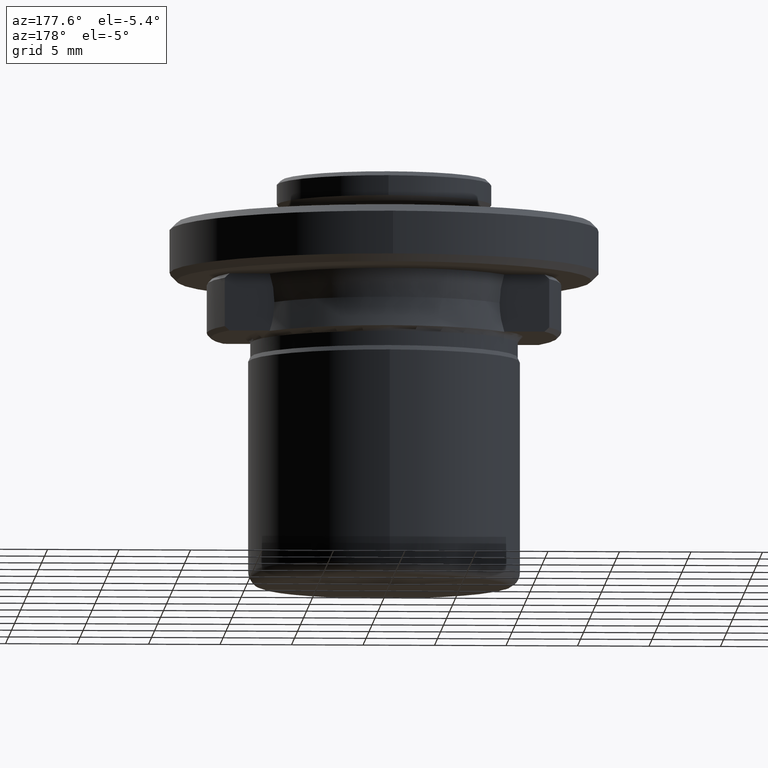
[diagram: clean part render]
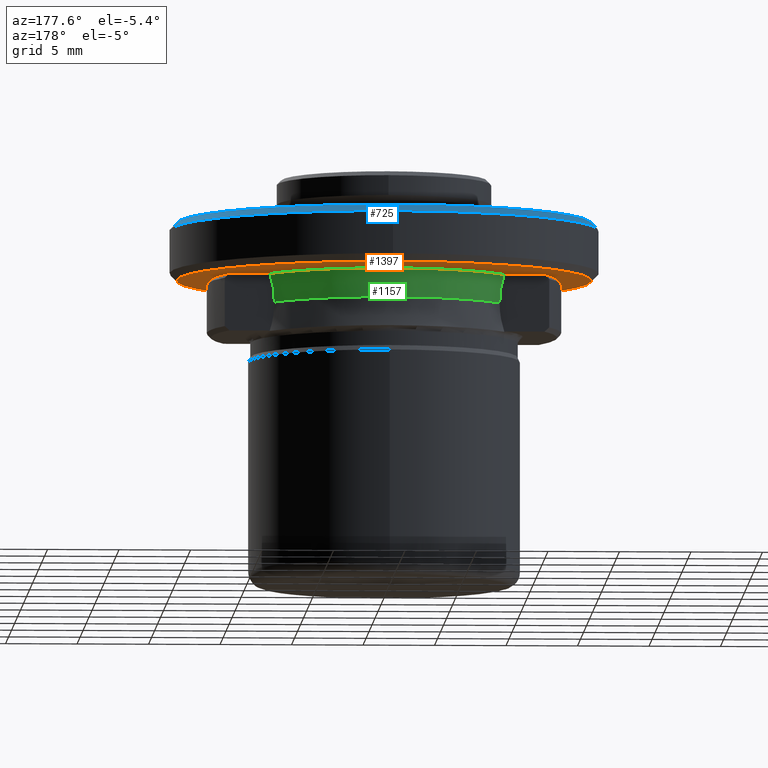
[diagram: same view with three faces highlighted in distinct colors, each labeled with its STEP entity id]
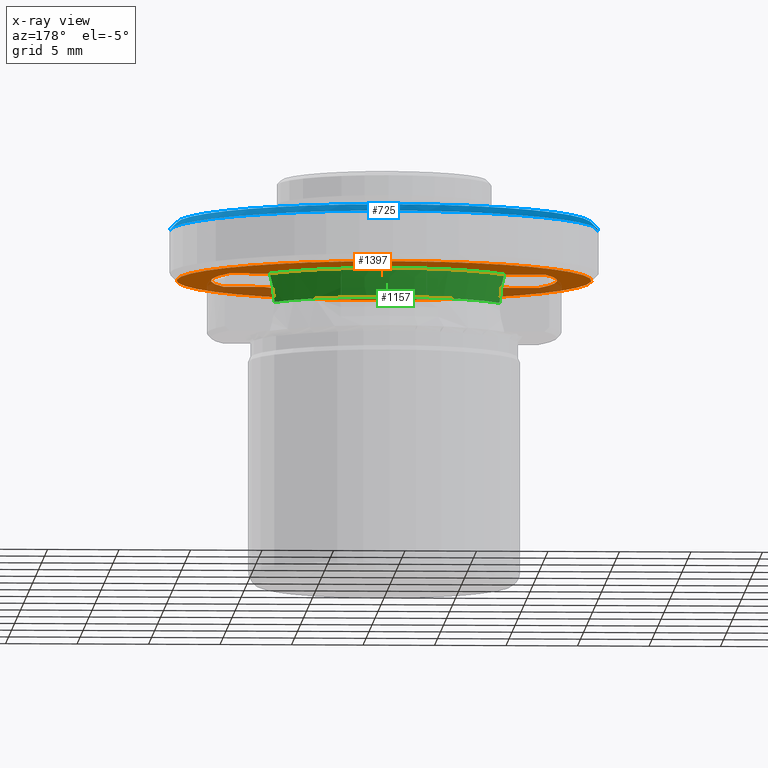
[diagram: x-ray of the same camera — body ghosted, the three highlighted faces saturated]
A machine part, auxiliary view with three faces highlighted in distinct colors.
The next image is the same camera in x-ray (body ghosted, the three faces saturated) — at least one of them is partly hidden behind the body in this view.
Their STEP definitions:

[orange] entity #1397 — the highlighted planar face has unit normal (0, 0, 1).
#24 = CARTESIAN_POINT ( 'NONE',  ( 14.50000000000003600, 0.0000000000000000000, 8.750000000000035500 ) ) ;
#25 = AXIS2_PLACEMENT_3D ( 'NONE', #1444, #401, #1613 ) ;
#59 = CIRCLE ( 'NONE', #2101, 12.10000000000000100 ) ;
#86 = CARTESIAN_POINT ( 'NONE',  ( -8.196975813224247200, -5.000000000059219300, 8.750000000000000000 ) ) ;
#90 = ORIENTED_EDGE ( 'NONE', *, *, #1494, .F. ) ;
#141 = FACE_OUTER_BOUND ( 'NONE', #1128, .T. ) ;
#170 = VERTEX_POINT ( 'NONE', #86 ) ;
#203 = CIRCLE ( 'NONE', #1188, 12.10000000000000000 ) ;
#217 = VERTEX_POINT ( 'NONE', #617 ) ;
#222 = ORIENTED_EDGE ( 'NONE', *, *, #942, .F. ) ;
#231 = EDGE_CURVE ( 'NONE', #1811, #1316, #1967, .T. ) ;
#250 = CARTESIAN_POINT ( 'NONE',  ( 11.01862060256122100, 5.000000003314000600, 8.749999999325346800 ) ) ;
#257 = CARTESIAN_POINT ( 'NONE',  ( 8.196975813404300500, -5.000000000000000000, 8.750000000444099900 ) ) ;
#272 = CARTESIAN_POINT ( 'NONE',  ( 9.597103929000001100, -5.000000000000000000, 8.750000000000000000 ) ) ;
#274 = EDGE_CURVE ( 'NONE', #170, #2058, #1125, .T. ) ;
#298 = VECTOR ( 'NONE', #1314, 1000.000000000000000 ) ;
#392 = VERTEX_POINT ( 'NONE', #2104 ) ;
#401 = DIRECTION ( 'NONE',  ( 0.0000000000000000000, -0.0000000000000000000, 1.000000000000000000 ) ) ;
#428 = DIRECTION ( 'NONE',  ( 0.0000000000000000000, 0.0000000000000000000, -1.000000000000000000 ) ) ;
#454 = ORIENTED_EDGE ( 'NONE', *, *, #274, .T. ) ;
#455 = EDGE_CURVE ( 'NONE', #1316, #1811, #2140, .T. ) ;
#465 = ORIENTED_EDGE ( 'NONE', *, *, #910, .F. ) ;
#471 = PLANE ( 'NONE',  #2216 ) ;
#509 = CARTESIAN_POINT ( 'NONE',  ( -8.196975813224247200, -5.000000000059219300, 8.750000000000000000 ) ) ;
#526 = CIRCLE ( 'NONE', #539, 12.10000000000000000 ) ;
#539 = AXIS2_PLACEMENT_3D ( 'NONE', #563, #1772, #755 ) ;
#542 = ORIENTED_EDGE ( 'NONE', *, *, #573, .F. ) ;
#553 = DIRECTION ( 'NONE',  ( 0.0000000000000000000, 0.0000000000000000000, -1.000000000000000000 ) ) ;
#557 = CARTESIAN_POINT ( 'NONE',  ( 8.196975814546172900, 5.000000003314001500, 8.750000000509832200 ) ) ;
#563 = CARTESIAN_POINT ( 'NONE',  ( 0.0000000000000000000, 0.0000000000000000000, 8.750000000000000000 ) ) ;
#573 = EDGE_CURVE ( 'NONE', #1573, #217, #203, .T. ) ;
#617 = CARTESIAN_POINT ( 'NONE',  ( -11.01862060233275300, 5.000000003314000600, 8.749999999533397200 ) ) ;
#619 = LINE ( 'NONE', #1751, #1481 ) ;
#620 = EDGE_CURVE ( 'NONE', #392, #170, #1928, .T. ) ;
#636 = CARTESIAN_POINT ( 'NONE',  ( -14.50000000000003600, 1.806354028742348200E-015, 8.750000000000035500 ) ) ;
#664 = CARTESIAN_POINT ( 'NONE',  ( -14.67399999999999900, -14.67399999999999900, 8.750000000000000000 ) ) ;
#737 = DIRECTION ( 'NONE',  ( 1.000000000000000000, 0.0000000000000000000, 0.0000000000000000000 ) ) ;
#755 = DIRECTION ( 'NONE',  ( -1.000000000000000000, 0.0000000000000000000, 0.0000000000000000000 ) ) ;
#780 = CARTESIAN_POINT ( 'NONE',  ( 4.015183221997171300, -11.85561054524241900, 8.750000000000001800 ) ) ;
#787 = CARTESIAN_POINT ( 'NONE',  ( -8.196975812969103700, 5.000000000442648600, 8.750000000509832200 ) ) ;
#841 = ORIENTED_EDGE ( 'NONE', *, *, #1238, .T. ) ;
#846 = DIRECTION ( 'NONE',  ( 1.000000000000000000, 0.0000000000000000000, 0.0000000000000000000 ) ) ;
#910 = EDGE_CURVE ( 'NONE', #2008, #1169, #1707, .T. ) ;
#942 = EDGE_CURVE ( 'NONE', #392, #1573, #526, .T. ) ;
#948 = ORIENTED_EDGE ( 'NONE', *, *, #1824, .F. ) ;
#960 = CARTESIAN_POINT ( 'NONE',  ( 8.196975814546172900, 5.000000003314001500, 8.750000000509832200 ) ) ;
#977 = CARTESIAN_POINT ( 'NONE',  ( -4.015183221997213000, -11.85561054524239600, 8.750000000000000000 ) ) ;
#980 = DIRECTION ( 'NONE',  ( 1.000000000000000000, -0.0000000000000000000, -0.0000000000000000000 ) ) ;
#1034 = VECTOR ( 'NONE', #980, 1000.000000000000000 ) ;
#1059 = DIRECTION ( 'NONE',  ( 0.0000000000000000000, -0.0000000000000000000, 1.000000000000000000 ) ) ;
#1090 = CARTESIAN_POINT ( 'NONE',  ( 0.0000000000000000000, 0.0000000000000000000, 8.750000000000035500 ) ) ;
#1125 =( BOUNDED_CURVE ( )  B_SPLINE_CURVE ( 3, ( #509, #977, #780, #1363 ),
 .UNSPECIFIED., .F., .F. ) 
 B_SPLINE_CURVE_WITH_KNOTS ( ( 4, 4 ),
 ( 0.0000000000000000000, 0.01955758531398497200 ),
 .UNSPECIFIED. ) 
 CURVE ( )  GEOMETRIC_REPRESENTATION_ITEM ( )  RATIONAL_B_SPLINE_CURVE ( ( 0.9839124906715949200, 0.6695507562529831000, 0.6695507562529824400, 0.9839124906715930300 ) ) 
 REPRESENTATION_ITEM ( '' )  );
#1128 = EDGE_LOOP ( 'NONE', ( #1697, #1995 ) ) ;
#1169 = VERTEX_POINT ( 'NONE', #960 ) ;
#1188 = AXIS2_PLACEMENT_3D ( 'NONE', #1471, #428, #1637 ) ;
#1238 = EDGE_CURVE ( 'NONE', #2058, #2153, #2065, .T. ) ;
#1243 = ORIENTED_EDGE ( 'NONE', *, *, #1842, .F. ) ;
#1254 = VECTOR ( 'NONE', #1706, 1000.000000000000000 ) ;
#1305 = CARTESIAN_POINT ( 'NONE',  ( -9.597103929000001100, -5.000000000000000000, 8.750000000000000000 ) ) ;
#1314 = DIRECTION ( 'NONE',  ( 1.000000000000000000, -0.0000000000000000000, -0.0000000000000000000 ) ) ;
#1316 = VERTEX_POINT ( 'NONE', #636 ) ;
#1352 = CARTESIAN_POINT ( 'NONE',  ( 11.01862060369155700, -4.999999999999999100, 8.749999999665449800 ) ) ;
#1363 = CARTESIAN_POINT ( 'NONE',  ( 8.196975813404298700, -5.000000000000000000, 8.750000000444099900 ) ) ;
#1397 = ADVANCED_FACE ( 'NONE', ( #1509, #141 ), #471, .F. ) ;
#1412 = CARTESIAN_POINT ( 'NONE',  ( -4.015183221453917800, 11.85561054469040200, 8.750000000000001800 ) ) ;
#1444 = CARTESIAN_POINT ( 'NONE',  ( 0.0000000000000000000, 0.0000000000000000000, 8.750000000000035500 ) ) ;
#1450 = CARTESIAN_POINT ( 'NONE',  ( -12.09999999999999800, 0.0000000000000000000, 8.750000000000000000 ) ) ;
#1471 = CARTESIAN_POINT ( 'NONE',  ( 0.0000000000000000000, 0.0000000000000000000, 8.750000000000000000 ) ) ;
#1481 = VECTOR ( 'NONE', #737, 1000.000000000000000 ) ;
#1494 = EDGE_CURVE ( 'NONE', #1169, #2000, #2147, .T. ) ;
#1509 = FACE_BOUND ( 'NONE', #1703, .T. ) ;
#1570 = DIRECTION ( 'NONE',  ( 1.000000000000000000, 0.0000000000000000000, 0.0000000000000000000 ) ) ;
#1573 = VERTEX_POINT ( 'NONE', #1450 ) ;
#1574 = CARTESIAN_POINT ( 'NONE',  ( 4.015183221453870700, 11.85561054469042100, 8.750000000000001800 ) ) ;
#1586 = CARTESIAN_POINT ( 'NONE',  ( 0.0000000000000000000, 0.0000000000000000000, 8.749999999999998200 ) ) ;
#1589 = CARTESIAN_POINT ( 'NONE',  ( -8.196975812969103700, 5.000000000442648600, 8.750000000509832200 ) ) ;
#1613 = DIRECTION ( 'NONE',  ( 1.000000000000000000, 0.0000000000000000000, 0.0000000000000000000 ) ) ;
#1637 = DIRECTION ( 'NONE',  ( -1.000000000000000000, 0.0000000000000000000, 0.0000000000000000000 ) ) ;
#1697 = ORIENTED_EDGE ( 'NONE', *, *, #231, .F. ) ;
#1703 = EDGE_LOOP ( 'NONE', ( #90, #465, #948, #542, #222, #1771, #454, #841, #1243 ) ) ;
#1706 = DIRECTION ( 'NONE',  ( 1.000000000000000000, 0.0000000000000000000, 0.0000000000000000000 ) ) ;
#1707 =( BOUNDED_CURVE ( )  B_SPLINE_CURVE ( 3, ( #1589, #1412, #1574, #557 ),
 .UNSPECIFIED., .F., .F. ) 
 B_SPLINE_CURVE_WITH_KNOTS ( ( 4, 4 ),
 ( 0.0000000000000000000, 0.01955758531167859200 ),
 .UNSPECIFIED. ) 
 CURVE ( )  GEOMETRIC_REPRESENTATION_ITEM ( )  RATIONAL_B_SPLINE_CURVE ( ( 0.9839124906199209200, 0.6695507562702077700, 0.6695507562702069900, 0.9839124906199190300 ) ) 
 REPRESENTATION_ITEM ( '' )  );
#1751 = CARTESIAN_POINT ( 'NONE',  ( 0.0000000000000000000, 5.000000006628000400, 8.750000000000000000 ) ) ;
#1757 = DIRECTION ( 'NONE',  ( -1.000000000000000000, 0.0000000000000000000, 0.0000000000000000000 ) ) ;
#1771 = ORIENTED_EDGE ( 'NONE', *, *, #620, .T. ) ;
#1772 = DIRECTION ( 'NONE',  ( 0.0000000000000000000, 0.0000000000000000000, -1.000000000000000000 ) ) ;
#1811 = VERTEX_POINT ( 'NONE', #24 ) ;
#1824 = EDGE_CURVE ( 'NONE', #217, #2008, #619, .T. ) ;
#1842 = EDGE_CURVE ( 'NONE', #2000, #2153, #59, .T. ) ;
#1858 = DIRECTION ( 'NONE',  ( 0.0000000000000000000, 0.0000000000000000000, 1.000000000000000000 ) ) ;
#1928 = LINE ( 'NONE', #1305, #1034 ) ;
#1967 = CIRCLE ( 'NONE', #2167, 14.50000000000003600 ) ;
#1995 = ORIENTED_EDGE ( 'NONE', *, *, #455, .F. ) ;
#2000 = VERTEX_POINT ( 'NONE', #250 ) ;
#2008 = VERTEX_POINT ( 'NONE', #787 ) ;
#2058 = VERTEX_POINT ( 'NONE', #257 ) ;
#2065 = LINE ( 'NONE', #272, #298 ) ;
#2101 = AXIS2_PLACEMENT_3D ( 'NONE', #1586, #553, #1757 ) ;
#2104 = CARTESIAN_POINT ( 'NONE',  ( -11.01862060327093200, -4.999999999999999100, 8.750000000048482100 ) ) ;
#2140 = CIRCLE ( 'NONE', #25, 14.50000000000003600 ) ;
#2147 = LINE ( 'NONE', #2219, #1254 ) ;
#2153 = VERTEX_POINT ( 'NONE', #1352 ) ;
#2167 = AXIS2_PLACEMENT_3D ( 'NONE', #1090, #1059, #1570 ) ;
#2216 = AXIS2_PLACEMENT_3D ( 'NONE', #664, #1858, #846 ) ;
#2219 = CARTESIAN_POINT ( 'NONE',  ( 0.0000000000000000000, 5.000000006628000400, 8.750000000000000000 ) ) ;

[blue] entity #725 — the highlighted conical surface has half-angle 45 deg.
#127 = LINE ( 'NONE', #191, #1899 ) ;
#129 = CARTESIAN_POINT ( 'NONE',  ( 0.0000000000000000000, 0.0000000000000000000, 12.75000000000000200 ) ) ;
#177 = VERTEX_POINT ( 'NONE', #1642 ) ;
#191 = CARTESIAN_POINT ( 'NONE',  ( 14.50000000000000000, 1.775737858763662000E-015, 12.75000000000000200 ) ) ;
#290 = AXIS2_PLACEMENT_3D ( 'NONE', #1692, #1375, #1315 ) ;
#305 = EDGE_CURVE ( 'NONE', #1087, #814, #1078, .T. ) ;
#312 = VERTEX_POINT ( 'NONE', #993 ) ;
#400 = LINE ( 'NONE', #1269, #937 ) ;
#466 = DIRECTION ( 'NONE',  ( -1.000000000000000000, 0.0000000000000000000, 0.0000000000000000000 ) ) ;
#482 = DIRECTION ( 'NONE',  ( -0.0000000000000000000, -0.0000000000000000000, 1.000000000000000000 ) ) ;
#719 = ORIENTED_EDGE ( 'NONE', *, *, #1130, .F. ) ;
#725 = ADVANCED_FACE ( 'NONE', ( #869 ), #1265, .T. ) ;
#733 = DIRECTION ( 'NONE',  ( 0.7071067811865463500, 8.659560562354918100E-017, -0.7071067811865487900 ) ) ;
#785 = CARTESIAN_POINT ( 'NONE',  ( 15.00000000000000000, 1.836970198721029600E-015, 12.25000000000000000 ) ) ;
#814 = VERTEX_POINT ( 'NONE', #1550 ) ;
#833 = EDGE_LOOP ( 'NONE', ( #1385, #1132, #1495, #2003, #719 ) ) ;
#869 = FACE_OUTER_BOUND ( 'NONE', #833, .T. ) ;
#896 = EDGE_CURVE ( 'NONE', #177, #1087, #127, .T. ) ;
#898 = DIRECTION ( 'NONE',  ( -0.0000000000000000000, -0.0000000000000000000, 1.000000000000000000 ) ) ;
#937 = VECTOR ( 'NONE', #1276, 1000.000000000000000 ) ;
#993 = CARTESIAN_POINT ( 'NONE',  ( -14.49999999999996300, 0.0000000000000000000, 12.75000000000003900 ) ) ;
#1068 = CIRCLE ( 'NONE', #2168, 14.49999999999996300 ) ;
#1078 = CIRCLE ( 'NONE', #290, 15.00000000000000000 ) ;
#1087 = VERTEX_POINT ( 'NONE', #785 ) ;
#1095 = VERTEX_POINT ( 'NONE', #1457 ) ;
#1100 = CIRCLE ( 'NONE', #1875, 15.00000000000000000 ) ;
#1130 = EDGE_CURVE ( 'NONE', #312, #1095, #400, .T. ) ;
#1132 = ORIENTED_EDGE ( 'NONE', *, *, #896, .T. ) ;
#1265 = CONICAL_SURFACE ( 'NONE', #2116, 14.50000000000000000, 0.7853981633974466100 ) ;
#1269 = CARTESIAN_POINT ( 'NONE',  ( -14.50000000000000000, 0.0000000000000000000, 12.75000000000000200 ) ) ;
#1276 = DIRECTION ( 'NONE',  ( -0.7071067811865463500, 0.0000000000000000000, -0.7071067811865487900 ) ) ;
#1315 = DIRECTION ( 'NONE',  ( -1.000000000000000000, 0.0000000000000000000, 0.0000000000000000000 ) ) ;
#1375 = DIRECTION ( 'NONE',  ( -0.0000000000000000000, -0.0000000000000000000, 1.000000000000000000 ) ) ;
#1385 = ORIENTED_EDGE ( 'NONE', *, *, #2142, .F. ) ;
#1457 = CARTESIAN_POINT ( 'NONE',  ( -15.00000000000000000, 0.0000000000000000000, 12.25000000000000000 ) ) ;
#1495 = ORIENTED_EDGE ( 'NONE', *, *, #305, .T. ) ;
#1523 = CARTESIAN_POINT ( 'NONE',  ( 0.0000000000000000000, 0.0000000000000000000, 12.75000000000003900 ) ) ;
#1550 = CARTESIAN_POINT ( 'NONE',  ( 0.0000000000000000000, 15.00000000000000000, 12.25000000000000000 ) ) ;
#1642 = CARTESIAN_POINT ( 'NONE',  ( 14.49999999999996300, 1.806354028742343400E-015, 12.75000000000003900 ) ) ;
#1691 = DIRECTION ( 'NONE',  ( -1.000000000000000000, 0.0000000000000000000, 0.0000000000000000000 ) ) ;
#1692 = CARTESIAN_POINT ( 'NONE',  ( 0.0000000000000000000, 0.0000000000000000000, 12.25000000000000000 ) ) ;
#1803 = EDGE_CURVE ( 'NONE', #814, #1095, #1100, .T. ) ;
#1875 = AXIS2_PLACEMENT_3D ( 'NONE', #1910, #898, #2079 ) ;
#1899 = VECTOR ( 'NONE', #733, 1000.000000000000000 ) ;
#1910 = CARTESIAN_POINT ( 'NONE',  ( 0.0000000000000000000, 0.0000000000000000000, 12.25000000000000000 ) ) ;
#2003 = ORIENTED_EDGE ( 'NONE', *, *, #1803, .T. ) ;
#2010 = DIRECTION ( 'NONE',  ( 0.0000000000000000000, 0.0000000000000000000, -1.000000000000000000 ) ) ;
#2079 = DIRECTION ( 'NONE',  ( -1.000000000000000000, 0.0000000000000000000, 0.0000000000000000000 ) ) ;
#2116 = AXIS2_PLACEMENT_3D ( 'NONE', #129, #2010, #466 ) ;
#2142 = EDGE_CURVE ( 'NONE', #177, #312, #1068, .T. ) ;
#2168 = AXIS2_PLACEMENT_3D ( 'NONE', #1523, #482, #1691 ) ;

[green] entity #1157 — the highlighted face is a freeform B-spline surface patch.
#67 = ORIENTED_EDGE ( 'NONE', *, *, #1548, .F. ) ;
#74 = CARTESIAN_POINT ( 'NONE',  ( 7.954581259999998500, 4.719140153000001400, 7.181098635999999800 ) ) ;
#97 = CARTESIAN_POINT ( 'NONE',  ( 3.802041327538610900, 11.41995861482380400, 6.749999999011321500 ) ) ;
#242 = CARTESIAN_POINT ( 'NONE',  ( -3.937024453000000300, 11.49113273000000000, 7.181098635999998900 ) ) ;
#405 = CARTESIAN_POINT ( 'NONE',  ( 8.056392546000001400, 4.779540785000001800, 6.001249375000001300 ) ) ;
#409 =( BOUNDED_CURVE ( )  B_SPLINE_CURVE ( 3, ( #1141, #611, #97, #1311 ),
 .UNSPECIFIED., .F., .T. ) 
 B_SPLINE_CURVE_WITH_KNOTS ( ( 4, 4 ),
 ( 0.0000000000000000000, 1.000000000000000000 ),
 .UNSPECIFIED. ) 
 CURVE ( )  GEOMETRIC_REPRESENTATION_ITEM ( )  RATIONAL_B_SPLINE_CURVE ( ( 0.9738585525977352400, 0.6725504043378097700, 0.6725504043378099900, 0.9738585525977354600 ) ) 
 REPRESENTATION_ITEM ( '' )  );
#413 = CARTESIAN_POINT ( 'NONE',  ( 7.877112416672512800, 4.999999997048595500, 6.749999999319589600 ) ) ;
#414 = CARTESIAN_POINT ( 'NONE',  ( 8.091804077999999100, 4.800549054000000200, 8.356088229000002700 ) ) ;
#557 = CARTESIAN_POINT ( 'NONE',  ( 8.196975814546172900, 5.000000003314001500, 8.750000000509832200 ) ) ;
#582 = CARTESIAN_POINT ( 'NONE',  ( -8.196975812969103700, 5.000000000442648600, 8.750000000509832200 ) ) ;
#593 = CARTESIAN_POINT ( 'NONE',  ( -4.004941237999998900, 11.68936385900000000, 8.356088229000002700 ) ) ;
#594 = EDGE_CURVE ( 'NONE', #1297, #1526, #409, .T. ) ;
#611 = CARTESIAN_POINT ( 'NONE',  ( -3.802041327538604200, 11.41995861482380700, 6.749999999011319800 ) ) ;
#765 = CARTESIAN_POINT ( 'NONE',  ( -7.987554438100409500, 5.000000000000000000, 8.103832765032985100 ) ) ;
#781 = CARTESIAN_POINT ( 'NONE',  ( 8.460519829000002500, 5.019293605000001400, 9.461645811000002100 ) ) ;
#787 = CARTESIAN_POINT ( 'NONE',  ( -8.196975812969103700, 5.000000000442648600, 8.750000000509832200 ) ) ;
#875 = CARTESIAN_POINT ( 'NONE',  ( 7.877112416672512800, 4.999999997048595500, 6.749999999319589600 ) ) ;
#910 = EDGE_CURVE ( 'NONE', #2008, #1169, #1707, .T. ) ;
#925 =( BOUNDED_SURFACE ( )  B_SPLINE_SURFACE ( 3, 3, ( 
 ( #405, #1790, #2124, #1123 ),
 ( #74, #1285, #242, #1455 ),
 ( #414, #1622, #593, #1797 ),
 ( #781, #1962, #953, #2134 ) ),
 .UNSPECIFIED., .F., .F., .F. ) 
 B_SPLINE_SURFACE_WITH_KNOTS ( ( 4, 4 ),
 ( 4, 4 ),
 ( 0.0000000000000000000, 1.000000000000000000 ),
 ( 0.0000000000000000000, 1.000000000000000000 ),
 .UNSPECIFIED. ) 
 GEOMETRIC_REPRESENTATION_ITEM ( )  RATIONAL_B_SPLINE_SURFACE ( (
 ( 1.000000000000000000, 0.6734850439786470600, 0.6734850439786470600, 1.000000000000000000),
 ( 0.9816814431953340100, 0.6611477699434310500, 0.6611477699434310500, 0.9816814431953340100),
 ( 0.9816814431953340100, 0.6611477699434310500, 0.6611477699434310500, 0.9816814431953340100),
 ( 1.000000000000000000, 0.6734850439786470600, 0.6734850439786470600, 1.000000000000000000) ) ) 
 REPRESENTATION_ITEM ( '' )  SURFACE ( )  );
#944 = CARTESIAN_POINT ( 'NONE',  ( -7.877112416672511100, 4.999999997048597300, 6.749999999319589600 ) ) ;
#953 = CARTESIAN_POINT ( 'NONE',  ( -4.187432670999998900, 12.22200806699999900, 9.461645811000002100 ) ) ;
#960 = CARTESIAN_POINT ( 'NONE',  ( 8.196975814546172900, 5.000000003314001500, 8.750000000509832200 ) ) ;
#1000 = ORIENTED_EDGE ( 'NONE', *, *, #1973, .T. ) ;
#1123 = CARTESIAN_POINT ( 'NONE',  ( -8.056392546000001400, 4.779540785000001800, 6.001249375000001300 ) ) ;
#1141 = CARTESIAN_POINT ( 'NONE',  ( -7.877112416672511100, 4.999999997048597300, 6.749999999319589600 ) ) ;
#1157 = ADVANCED_FACE ( 'NONE', ( #1330 ), #925, .F. ) ;
#1169 = VERTEX_POINT ( 'NONE', #960 ) ;
#1283 = CARTESIAN_POINT ( 'NONE',  ( 7.987554438062074000, 5.000000000000002700, 8.103832764914706400 ) ) ;
#1285 = CARTESIAN_POINT ( 'NONE',  ( 3.937024453000000300, 11.49113273000000000, 7.181098635999998900 ) ) ;
#1297 = VERTEX_POINT ( 'NONE', #2164 ) ;
#1311 = CARTESIAN_POINT ( 'NONE',  ( 7.877112416672512800, 4.999999997048595500, 6.749999999319589600 ) ) ;
#1330 = FACE_OUTER_BOUND ( 'NONE', #1734, .T. ) ;
#1412 = CARTESIAN_POINT ( 'NONE',  ( -4.015183221453917800, 11.85561054469040200, 8.750000000000001800 ) ) ;
#1443 = ORIENTED_EDGE ( 'NONE', *, *, #594, .F. ) ;
#1453 = CARTESIAN_POINT ( 'NONE',  ( 7.877112415001549000, 5.000000000000003600, 7.429352586418210600 ) ) ;
#1455 = CARTESIAN_POINT ( 'NONE',  ( -7.954581259999998500, 4.719140153000001400, 7.181098635999999800 ) ) ;
#1526 = VERTEX_POINT ( 'NONE', #875 ) ;
#1548 = EDGE_CURVE ( 'NONE', #2008, #1297, #2072, .T. ) ;
#1574 = CARTESIAN_POINT ( 'NONE',  ( 4.015183221453870700, 11.85561054469042100, 8.750000000000001800 ) ) ;
#1589 = CARTESIAN_POINT ( 'NONE',  ( -8.196975812969103700, 5.000000000442648600, 8.750000000509832200 ) ) ;
#1614 = CARTESIAN_POINT ( 'NONE',  ( 8.196975814546172900, 5.000000003314001500, 8.750000000509832200 ) ) ;
#1622 = CARTESIAN_POINT ( 'NONE',  ( 4.004941237999998900, 11.68936385900000000, 8.356088229000002700 ) ) ;
#1707 =( BOUNDED_CURVE ( )  B_SPLINE_CURVE ( 3, ( #1589, #1412, #1574, #557 ),
 .UNSPECIFIED., .F., .F. ) 
 B_SPLINE_CURVE_WITH_KNOTS ( ( 4, 4 ),
 ( 0.0000000000000000000, 0.01955758531167859200 ),
 .UNSPECIFIED. ) 
 CURVE ( )  GEOMETRIC_REPRESENTATION_ITEM ( )  RATIONAL_B_SPLINE_CURVE ( ( 0.9839124906199209200, 0.6695507562702077700, 0.6695507562702069900, 0.9839124906199190300 ) ) 
 REPRESENTATION_ITEM ( '' )  );
#1734 = EDGE_LOOP ( 'NONE', ( #1443, #67, #2022, #1000 ) ) ;
#1790 = CARTESIAN_POINT ( 'NONE',  ( 3.987414726000000400, 11.63820860699999700, 6.001249375000002200 ) ) ;
#1797 = CARTESIAN_POINT ( 'NONE',  ( -8.091804077999999100, 4.800549054000000200, 8.356088229000002700 ) ) ;
#1914 = B_SPLINE_CURVE_WITH_KNOTS ( 'NONE', 3,
 ( #1614, #1283, #1453, #413 ),
 .UNSPECIFIED., .F., .F.,
 ( 4, 4 ),
 ( 2.261502033258373100E-013, 0.002031991267083054800 ),
 .UNSPECIFIED. ) ;
#1952 = CARTESIAN_POINT ( 'NONE',  ( -7.877112415001547200, 5.000000000000000000, 7.429352586293858500 ) ) ;
#1962 = CARTESIAN_POINT ( 'NONE',  ( 4.187432670999998900, 12.22200806699999900, 9.461645811000002100 ) ) ;
#1973 = EDGE_CURVE ( 'NONE', #1169, #1526, #1914, .T. ) ;
#2008 = VERTEX_POINT ( 'NONE', #787 ) ;
#2022 = ORIENTED_EDGE ( 'NONE', *, *, #910, .T. ) ;
#2072 = B_SPLINE_CURVE_WITH_KNOTS ( 'NONE', 3,
 ( #582, #765, #1952, #944 ),
 .UNSPECIFIED., .F., .F.,
 ( 4, 4 ),
 ( 5.980985295301940700E-013, 0.002031991267083052600 ),
 .UNSPECIFIED. ) ;
#2124 = CARTESIAN_POINT ( 'NONE',  ( -3.987414726000000400, 11.63820860699999700, 6.001249375000002200 ) ) ;
#2134 = CARTESIAN_POINT ( 'NONE',  ( -8.460519829000002500, 5.019293605000001400, 9.461645811000002100 ) ) ;
#2164 = CARTESIAN_POINT ( 'NONE',  ( -7.877112416672511100, 4.999999997048597300, 6.749999999319589600 ) ) ;